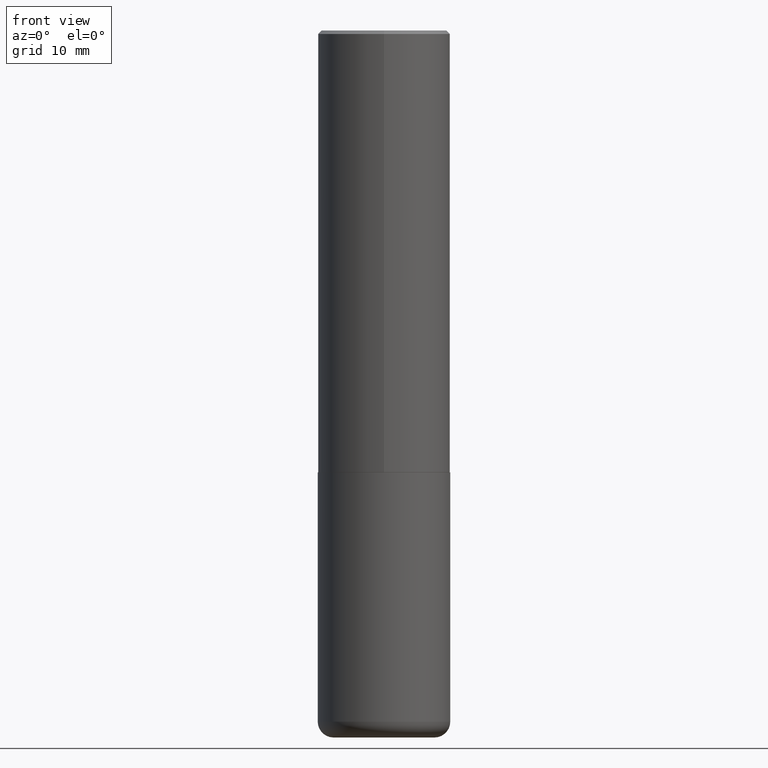
[diagram: clean part render]
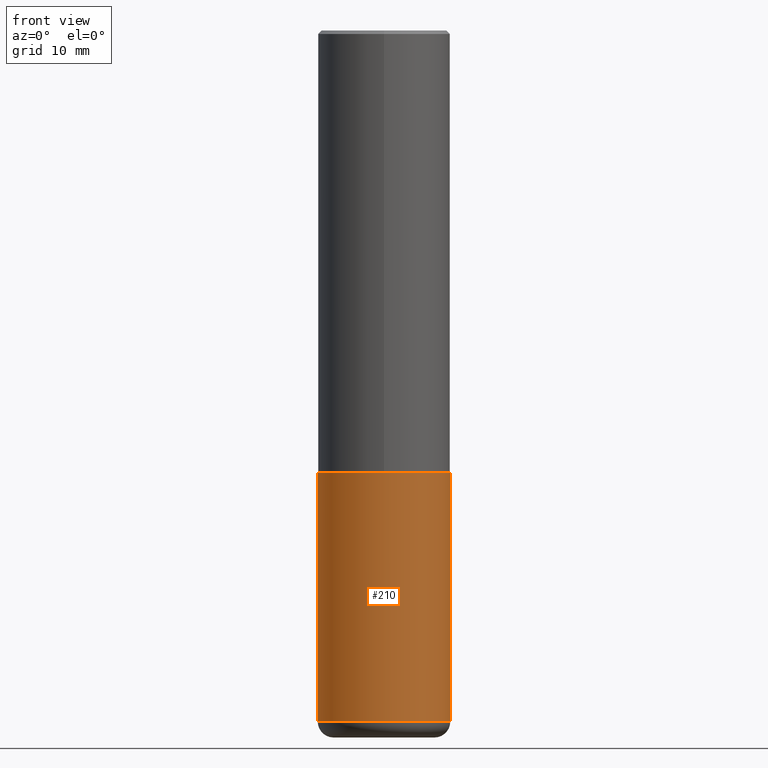
[diagram: same view with one face highlighted and labeled with its STEP entity id]
A machine part, front view. The second image highlights one B-rep face of the part: STEP entity #210.
In plain terms, the highlighted cylindrical surface (partial cylindrical patch) has radius 9.525 mm, axis along (-0, 0, 1).
Its self-contained STEP definition (entity closure, byte-faithful):
#8 = CARTESIAN_POINT ( 'NONE',  ( 9.561783032183883600E-29, -1.365169203487670064E-14, -3.910000000000000142 ) ) ;
#12 = CARTESIAN_POINT ( 'NONE',  ( 0.3749999999999999445, -2.618611004132349622E-15, 1.828566290923475642E-29 ) ) ;
#36 = VECTOR ( 'NONE', #70, 39.37007874015748143 ) ;
#39 = DIRECTION ( 'NONE',  ( 1.000000000000000000, -6.982962677686263555E-15, 0.000000000000000000 ) ) ;
#40 = CIRCLE ( 'NONE', #108, 0.3749999999999999445 ) ;
#45 = CIRCLE ( 'NONE', #146, 0.3750000000000000555 ) ;
#52 = CARTESIAN_POINT ( 'NONE',  ( -0.3750000000000000555, -8.525662431891907096E-15, -2.499999999999999556 ) ) ;
#69 = EDGE_CURVE ( 'NONE', #332, #347, #202, .T. ) ;
#70 = DIRECTION ( 'NONE',  ( -2.445468806185136877E-29, 3.491481338843145188E-15, 1.000000000000000000 ) ) ;
#79 = ORIENTED_EDGE ( 'NONE', *, *, #289, .F. ) ;
#104 = CARTESIAN_POINT ( 'NONE',  ( 0.3750000000000000555, -1.134731435124021180E-14, -2.499999999999999556 ) ) ;
#108 = AXIS2_PLACEMENT_3D ( 'NONE', #8, #143, #39 ) ;
#113 = EDGE_LOOP ( 'NONE', ( #375, #253, #222, #79 ) ) ;
#143 = DIRECTION ( 'NONE',  ( -2.445468806185136597E-29, 3.491481338843145583E-15, 1.000000000000000000 ) ) ;
#145 = CYLINDRICAL_SURFACE ( 'NONE', #386, 0.3749999999999999445 ) ;
#146 = AXIS2_PLACEMENT_3D ( 'NONE', #401, #399, #405 ) ;
#148 = VERTEX_POINT ( 'NONE', #205 ) ;
#154 = VERTEX_POINT ( 'NONE', #104 ) ;
#164 = EDGE_CURVE ( 'NONE', #332, #148, #40, .T. ) ;
#176 = EDGE_CURVE ( 'NONE', #148, #154, #396, .T. ) ;
#177 = CARTESIAN_POINT ( 'NONE',  ( 0.000000000000000000, 0.000000000000000000, 0.000000000000000000 ) ) ;
#202 = LINE ( 'NONE', #329, #36 ) ;
#205 = CARTESIAN_POINT ( 'NONE',  ( 0.3749999999999999445, -1.627030303900904751E-14, -3.910000000000000142 ) ) ;
#206 = DIRECTION ( 'NONE',  ( -2.445468806185136877E-29, 3.491481338843145188E-15, 1.000000000000000000 ) ) ;
#210 = ADVANCED_FACE ( 'NONE', ( #338 ), #145, .T. ) ;
#222 = ORIENTED_EDGE ( 'NONE', *, *, #176, .T. ) ;
#238 = DIRECTION ( 'NONE',  ( 1.000000000000000000, -6.982962677686266711E-15, 4.876176775795935793E-29 ) ) ;
#253 = ORIENTED_EDGE ( 'NONE', *, *, #164, .T. ) ;
#267 = VECTOR ( 'NONE', #206, 39.37007874015748143 ) ;
#289 = EDGE_CURVE ( 'NONE', #347, #154, #45, .T. ) ;
#310 = DIRECTION ( 'NONE',  ( -2.445468806185136597E-29, 3.491481338843145583E-15, 1.000000000000000000 ) ) ;
#316 = CARTESIAN_POINT ( 'NONE',  ( -0.3749999999999999445, -1.098715677577632652E-14, -3.910000000000000142 ) ) ;
#329 = CARTESIAN_POINT ( 'NONE',  ( -0.3749999999999999445, 2.664535259100375303E-15, -1.844600658845589318E-29 ) ) ;
#332 = VERTEX_POINT ( 'NONE', #316 ) ;
#338 = FACE_OUTER_BOUND ( 'NONE', #113, .T. ) ;
#347 = VERTEX_POINT ( 'NONE', #52 ) ;
#375 = ORIENTED_EDGE ( 'NONE', *, *, #69, .F. ) ;
#386 = AXIS2_PLACEMENT_3D ( 'NONE', #177, #310, #238 ) ;
#396 = LINE ( 'NONE', #12, #267 ) ;
#399 = DIRECTION ( 'NONE',  ( -2.445468806185136597E-29, 3.491481338843145583E-15, 1.000000000000000000 ) ) ;
#401 = CARTESIAN_POINT ( 'NONE',  ( 6.113672015462840371E-29, -8.728703347107863365E-15, -2.499999999999999556 ) ) ;
#405 = DIRECTION ( 'NONE',  ( 1.000000000000000000, -6.982962677686264344E-15, 0.000000000000000000 ) ) ;